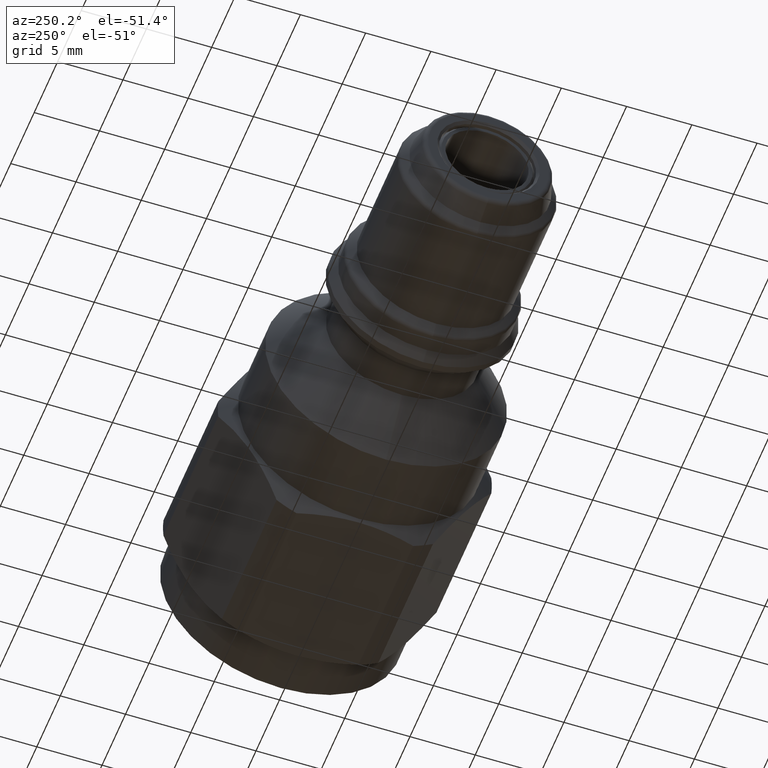
[diagram: clean part render]
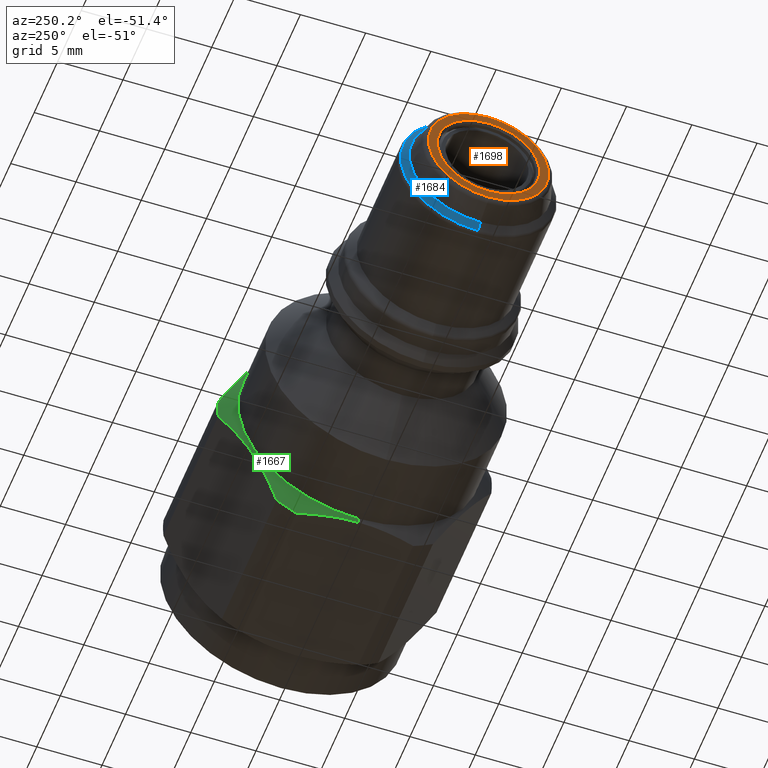
[diagram: same view with three faces highlighted in distinct colors, each labeled with its STEP entity id]
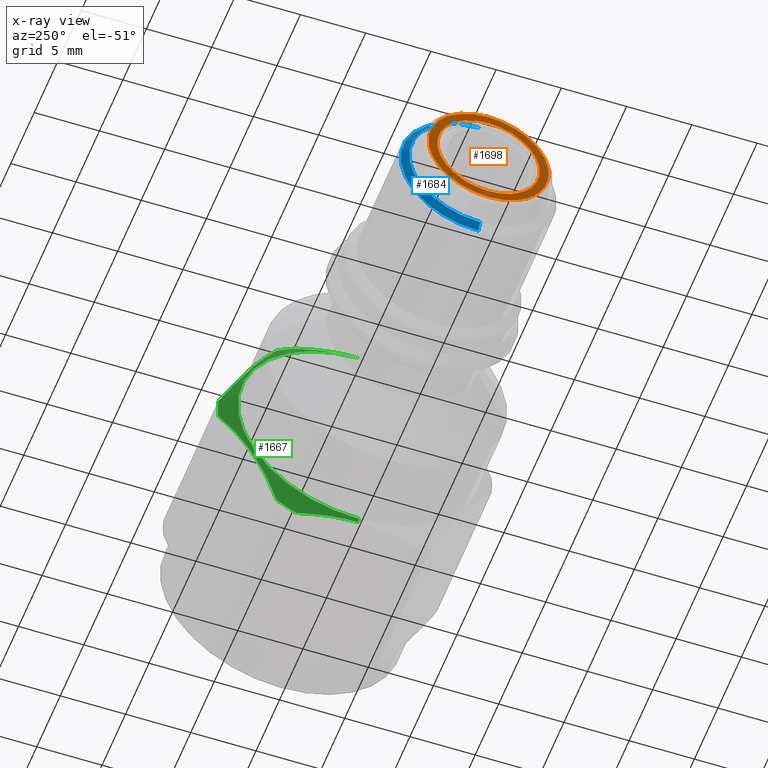
[diagram: x-ray of the same camera — body ghosted, the three highlighted faces saturated]
A machine part, auxiliary view with three faces highlighted in distinct colors.
The next image is the same camera in x-ray (body ghosted, the three faces saturated) — at least one of them is partly hidden behind the body in this view.
Their STEP definitions:

[orange] entity #1698 — the highlighted planar face has unit normal (1, 0, 0).
#46 = DIRECTION ( 'NONE',  ( 0.0000000000000000000, 0.0000000000000000000, -1.000000000000000000 ) ) ;
#73 = CARTESIAN_POINT ( 'NONE',  ( -44.50000000003974800, 0.0000000000000000000, 0.0000000000000000000 ) ) ;
#79 = DIRECTION ( 'NONE',  ( -1.000000000000000000, -0.0000000000000000000, -0.0000000000000000000 ) ) ;
#166 = AXIS2_PLACEMENT_3D ( 'NONE', #1866, #1863, #1864 ) ;
#184 = AXIS2_PLACEMENT_3D ( 'NONE', #570, #569, #566 ) ;
#223 = EDGE_CURVE ( 'NONE', #744, #662, #980, .T. ) ;
#277 = EDGE_CURVE ( 'NONE', #736, #692, #921, .T. ) ;
#302 = AXIS2_PLACEMENT_3D ( 'NONE', #1654, #1651, #1652 ) ;
#313 = EDGE_CURVE ( 'NONE', #662, #744, #882, .T. ) ;
#324 = EDGE_CURVE ( 'NONE', #692, #736, #872, .T. ) ;
#334 = AXIS2_PLACEMENT_3D ( 'NONE', #73, #79, #46 ) ;
#411 = CARTESIAN_POINT ( 'NONE',  ( -44.50000000003974800, 4.913235865358290200, 0.0000000000000000000 ) ) ;
#412 = PLANE ( 'NONE',  #638 ) ;
#414 = DIRECTION ( 'NONE',  ( 0.0000000000000000000, 0.0000000000000000000, -1.000000000000000000 ) ) ;
#415 = DIRECTION ( 'NONE',  ( 1.000000000000000000, 0.0000000000000000000, 0.0000000000000000000 ) ) ;
#566 = DIRECTION ( 'NONE',  ( 0.0000000000000000000, 0.0000000000000000000, -1.000000000000000000 ) ) ;
#569 = DIRECTION ( 'NONE',  ( -1.000000000000000000, -0.0000000000000000000, -0.0000000000000000000 ) ) ;
#570 = CARTESIAN_POINT ( 'NONE',  ( -44.50000000003974800, 0.0000000000000000000, 0.0000000000000000000 ) ) ;
#638 = AXIS2_PLACEMENT_3D ( 'NONE', #411, #415, #414 ) ;
#662 = VERTEX_POINT ( 'NONE', #1475 ) ;
#692 = VERTEX_POINT ( 'NONE', #1447 ) ;
#736 = VERTEX_POINT ( 'NONE', #1560 ) ;
#744 = VERTEX_POINT ( 'NONE', #1591 ) ;
#872 = CIRCLE ( 'NONE', #302, 3.925000000032099900 ) ;
#882 = CIRCLE ( 'NONE', #184, 4.617251435346900300 ) ;
#921 = CIRCLE ( 'NONE', #166, 3.925000000032099900 ) ;
#980 = CIRCLE ( 'NONE', #334, 4.617251435346900300 ) ;
#1058 = ORIENTED_EDGE ( 'NONE', *, *, #313, .T. ) ;
#1059 = ORIENTED_EDGE ( 'NONE', *, *, #223, .T. ) ;
#1060 = ORIENTED_EDGE ( 'NONE', *, *, #324, .F. ) ;
#1061 = ORIENTED_EDGE ( 'NONE', *, *, #277, .F. ) ;
#1294 = EDGE_LOOP ( 'NONE', ( #1060, #1061 ) ) ;
#1312 = EDGE_LOOP ( 'NONE', ( #1058, #1059 ) ) ;
#1447 = CARTESIAN_POINT ( 'NONE',  ( -44.50000000003974800, 0.0000000000000000000, 3.925000000032099900 ) ) ;
#1475 = CARTESIAN_POINT ( 'NONE',  ( -44.50000000003974800, 0.0000000000000000000, -4.617251435346900300 ) ) ;
#1560 = CARTESIAN_POINT ( 'NONE',  ( -44.50000000003974800, 4.806738686692672600E-016, -3.925000000032099900 ) ) ;
#1591 = CARTESIAN_POINT ( 'NONE',  ( -44.50000000003974800, 5.888729302836007300E-016, 4.617251435346900300 ) ) ;
#1651 = DIRECTION ( 'NONE',  ( -1.000000000000000000, 0.0000000000000000000, 0.0000000000000000000 ) ) ;
#1652 = DIRECTION ( 'NONE',  ( 0.0000000000000000000, 0.0000000000000000000, 1.000000000000000000 ) ) ;
#1654 = CARTESIAN_POINT ( 'NONE',  ( -44.50000000003974800, 0.0000000000000000000, 0.0000000000000000000 ) ) ;
#1698 = ADVANCED_FACE ( 'NONE', ( #1960, #1959 ), #412, .F. ) ;
#1863 = DIRECTION ( 'NONE',  ( -1.000000000000000000, 0.0000000000000000000, 0.0000000000000000000 ) ) ;
#1864 = DIRECTION ( 'NONE',  ( 0.0000000000000000000, 0.0000000000000000000, 1.000000000000000000 ) ) ;
#1866 = CARTESIAN_POINT ( 'NONE',  ( -44.50000000003974800, 0.0000000000000000000, 0.0000000000000000000 ) ) ;
#1959 = FACE_BOUND ( 'NONE', #1294, .T. ) ;
#1960 = FACE_OUTER_BOUND ( 'NONE', #1312, .T. ) ;

[blue] entity #1684 — the highlighted conical surface has half-angle 50 deg.
#87 = DIRECTION ( 'NONE',  ( -1.000000000000000000, 0.0000000000000000000, 0.0000000000000000000 ) ) ;
#129 = CARTESIAN_POINT ( 'NONE',  ( -42.31989471402535200, 0.0000000000000000000, 0.0000000000000000000 ) ) ;
#146 = DIRECTION ( 'NONE',  ( 0.0000000000000000000, 0.0000000000000000000, 1.000000000000000000 ) ) ;
#222 = EDGE_CURVE ( 'NONE', #669, #715, #982, .T. ) ;
#226 = EDGE_CURVE ( 'NONE', #716, #660, #977, .T. ) ;
#229 = EDGE_CURVE ( 'NONE', #716, #669, #976, .T. ) ;
#230 = EDGE_CURVE ( 'NONE', #660, #715, #973, .T. ) ;
#331 = AXIS2_PLACEMENT_3D ( 'NONE', #1773, #1774, #1779 ) ;
#335 = AXIS2_PLACEMENT_3D ( 'NONE', #129, #87, #146 ) ;
#473 = CARTESIAN_POINT ( 'NONE',  ( -42.20000000003975800, 0.0000000000000000000, 0.0000000000000000000 ) ) ;
#480 = DIRECTION ( 'NONE',  ( 1.000000000000000000, 0.0000000000000000000, 0.0000000000000000000 ) ) ;
#489 = DIRECTION ( 'NONE',  ( 0.0000000000000000000, 0.0000000000000000000, -1.000000000000000000 ) ) ;
#630 = AXIS2_PLACEMENT_3D ( 'NONE', #473, #480, #489 ) ;
#660 = VERTEX_POINT ( 'NONE', #1478 ) ;
#669 = VERTEX_POINT ( 'NONE', #1470 ) ;
#715 = VERTEX_POINT ( 'NONE', #1594 ) ;
#716 = VERTEX_POINT ( 'NONE', #1597 ) ;
#762 = CONICAL_SURFACE ( 'NONE', #630, 6.100000000000000500, 0.8726646259971512200 ) ;
#764 = FACE_OUTER_BOUND ( 'NONE', #1371, .T. ) ;
#972 = VECTOR ( 'NONE', #1722, 999.9999999999998900 ) ;
#973 = LINE ( 'NONE', #1720, #972 ) ;
#974 = VECTOR ( 'NONE', #1719, 999.9999999999998900 ) ;
#976 = LINE ( 'NONE', #1718, #974 ) ;
#977 = CIRCLE ( 'NONE', #331, 5.449551296709770100 ) ;
#982 = CIRCLE ( 'NONE', #335, 5.957115043874620300 ) ;
#1091 = ORIENTED_EDGE ( 'NONE', *, *, #230, .F. ) ;
#1109 = ORIENTED_EDGE ( 'NONE', *, *, #226, .F. ) ;
#1117 = ORIENTED_EDGE ( 'NONE', *, *, #229, .T. ) ;
#1118 = ORIENTED_EDGE ( 'NONE', *, *, #222, .T. ) ;
#1371 = EDGE_LOOP ( 'NONE', ( #1109, #1117, #1118, #1091 ) ) ;
#1470 = CARTESIAN_POINT ( 'NONE',  ( -42.31989471402535200, 7.295361870633592900E-016, 5.957115043874615900 ) ) ;
#1478 = CARTESIAN_POINT ( 'NONE',  ( -42.74579126707035200, 0.0000000000000000000, -5.449551296709770100 ) ) ;
#1594 = CARTESIAN_POINT ( 'NONE',  ( -42.31989471402535200, 0.0000000000000000000, -5.957115043874615900 ) ) ;
#1597 = CARTESIAN_POINT ( 'NONE',  ( -42.74579126707035200, 6.673775552304927900E-016, 5.449551296709770100 ) ) ;
#1684 = ADVANCED_FACE ( 'NONE', ( #764 ), #762, .T. ) ;
#1718 = CARTESIAN_POINT ( 'NONE',  ( -42.20000000003975800, 7.470345474798855300E-016, 6.100000000000000500 ) ) ;
#1719 = DIRECTION ( 'NONE',  ( 0.6427876096865495800, 9.381338752702627200E-017, 0.7660444431189693500 ) ) ;
#1720 = CARTESIAN_POINT ( 'NONE',  ( -42.20000000003975800, 0.0000000000000000000, -6.100000000000000500 ) ) ;
#1722 = DIRECTION ( 'NONE',  ( 0.6427876096865495800, 0.0000000000000000000, -0.7660444431189693500 ) ) ;
#1773 = CARTESIAN_POINT ( 'NONE',  ( -42.74579126707035200, 0.0000000000000000000, 0.0000000000000000000 ) ) ;
#1774 = DIRECTION ( 'NONE',  ( -1.000000000000000000, 0.0000000000000000000, 0.0000000000000000000 ) ) ;
#1779 = DIRECTION ( 'NONE',  ( 0.0000000000000000000, 0.0000000000000000000, 1.000000000000000000 ) ) ;

[green] entity #1667 — the highlighted conical surface has half-angle 54.741 deg.
#40 = CARTESIAN_POINT ( 'NONE',  ( -16.03397459621544700, 4.472135954999624900, 9.500000000000000000 ) ) ;
#41 = CARTESIAN_POINT ( 'NONE',  ( -16.25118935113408700, 3.750747677462578100, 9.500000000000000000 ) ) ;
#42 = CARTESIAN_POINT ( 'NONE',  ( -16.42890816646953300, 3.018253001808532100, 9.500000000000000000 ) ) ;
#43 = CARTESIAN_POINT ( 'NONE',  ( -16.61325780061456600, 1.896388017862768800, 9.499999999999996400 ) ) ;
#44 = CARTESIAN_POINT ( 'NONE',  ( -16.66106813924827200, 1.517207906920678300, 9.500000000000000000 ) ) ;
#45 = CARTESIAN_POINT ( 'NONE',  ( -16.72498090488483400, 0.7562864214277523800, 9.500000000000000000 ) ) ;
#47 = CARTESIAN_POINT ( 'NONE',  ( -16.74093410953185000, 0.3773723099377014300, 9.499999999999996400 ) ) ;
#49 = CARTESIAN_POINT ( 'NONE',  ( -16.74093410953185300, 1.163414453303989800E-015, 9.499999999999998200 ) ) ;
#51 = CARTESIAN_POINT ( 'NONE',  ( -16.03397459621544700, 1.285879139104720800E-015, 10.50000000000000000 ) ) ;
#53 = DIRECTION ( 'NONE',  ( 0.5772700983666239100, 9.999893415279094100E-017, 0.8165532643568259600 ) ) ;
#151 = EDGE_CURVE ( 'NONE', #679, #689, #1051, .T. ) ;
#204 = EDGE_CURVE ( 'NONE', #723, #683, #1916, .T. ) ;
#205 = EDGE_CURVE ( 'NONE', #708, #683, #1008, .T. ) ;
#232 = EDGE_CURVE ( 'NONE', #689, #670, #1927, .T. ) ;
#242 = EDGE_CURVE ( 'NONE', #723, #666, #956, .T. ) ;
#243 = EDGE_CURVE ( 'NONE', #730, #666, #1934, .T. ) ;
#245 = EDGE_CURVE ( 'NONE', #730, #649, #953, .T. ) ;
#246 = EDGE_CURVE ( 'NONE', #675, #649, #1933, .T. ) ;
#258 = EDGE_CURVE ( 'NONE', #675, #670, #944, .T. ) ;
#259 = EDGE_CURVE ( 'NONE', #708, #679, #943, .T. ) ;
#342 = AXIS2_PLACEMENT_3D ( 'NONE', #1905, #1904, #1903 ) ;
#343 = AXIS2_PLACEMENT_3D ( 'NONE', #1902, #1901, #1900 ) ;
#364 = AXIS2_PLACEMENT_3D ( 'NONE', #1803, #1801, #1804 ) ;
#366 = AXIS2_PLACEMENT_3D ( 'NONE', #1781, #1783, #1782 ) ;
#649 = VERTEX_POINT ( 'NONE', #1482 ) ;
#651 = DIRECTION ( 'NONE',  ( 0.5772700983666239100, 0.0000000000000000000, -0.8165532643568259600 ) ) ;
#654 = CARTESIAN_POINT ( 'NONE',  ( -16.03397459621544700, 0.0000000000000000000, -10.50000000000000000 ) ) ;
#666 = VERTEX_POINT ( 'NONE', #1471 ) ;
#670 = VERTEX_POINT ( 'NONE', #1467 ) ;
#675 = VERTEX_POINT ( 'NONE', #1463 ) ;
#679 = VERTEX_POINT ( 'NONE', #1460 ) ;
#683 = VERTEX_POINT ( 'NONE', #1456 ) ;
#689 = VERTEX_POINT ( 'NONE', #1450 ) ;
#708 = VERTEX_POINT ( 'NONE', #1543 ) ;
#723 = VERTEX_POINT ( 'NONE', #1539 ) ;
#730 = VERTEX_POINT ( 'NONE', #1564 ) ;
#809 = CONICAL_SURFACE ( 'NONE', #1415, 10.50000000000000000, 0.9554148035205876100 ) ;
#810 = FACE_OUTER_BOUND ( 'NONE', #1373, .T. ) ;
#943 = CIRCLE ( 'NONE', #343, 9.275000000039829800 ) ;
#944 = CIRCLE ( 'NONE', #342, 10.50000000000000000 ) ;
#953 = CIRCLE ( 'NONE', #364, 10.50000000000000000 ) ;
#956 = CIRCLE ( 'NONE', #366, 10.50000000000000000 ) ;
#1007 = VECTOR ( 'NONE', #53, 1000.000000000000000 ) ;
#1008 = LINE ( 'NONE', #51, #1007 ) ;
#1049 = VECTOR ( 'NONE', #651, 1000.000000000000000 ) ;
#1051 = LINE ( 'NONE', #654, #1049 ) ;
#1188 = ORIENTED_EDGE ( 'NONE', *, *, #259, .F. ) ;
#1189 = ORIENTED_EDGE ( 'NONE', *, *, #205, .T. ) ;
#1190 = ORIENTED_EDGE ( 'NONE', *, *, #204, .F. ) ;
#1191 = ORIENTED_EDGE ( 'NONE', *, *, #242, .T. ) ;
#1192 = ORIENTED_EDGE ( 'NONE', *, *, #243, .F. ) ;
#1193 = ORIENTED_EDGE ( 'NONE', *, *, #245, .T. ) ;
#1194 = ORIENTED_EDGE ( 'NONE', *, *, #246, .F. ) ;
#1195 = ORIENTED_EDGE ( 'NONE', *, *, #258, .T. ) ;
#1196 = ORIENTED_EDGE ( 'NONE', *, *, #232, .F. ) ;
#1197 = ORIENTED_EDGE ( 'NONE', *, *, #151, .F. ) ;
#1373 = EDGE_LOOP ( 'NONE', ( #1188, #1189, #1190, #1191, #1192, #1193, #1194, #1195, #1196, #1197 ) ) ;
#1415 = AXIS2_PLACEMENT_3D ( 'NONE', #1604, #1603, #1605 ) ;
#1450 = CARTESIAN_POINT ( 'NONE',  ( -16.74093410953185300, -5.884902352948748100E-024, -9.499999999999998200 ) ) ;
#1456 = CARTESIAN_POINT ( 'NONE',  ( -16.74093410953185300, 1.163414453303989800E-015, 9.499999999999998200 ) ) ;
#1460 = CARTESIAN_POINT ( 'NONE',  ( -16.89999999999999900, 0.0000000000000000000, -9.275000000039829800 ) ) ;
#1463 = CARTESIAN_POINT ( 'NONE',  ( -16.03397459621544700, 5.991173358452360100, -8.622983346207441000 ) ) ;
#1467 = CARTESIAN_POINT ( 'NONE',  ( -16.03397459621544700, 4.472135954999619600, -9.500000000000000000 ) ) ;
#1471 = CARTESIAN_POINT ( 'NONE',  ( -16.03397459621544700, 5.991173358452360100, 8.622983346207441000 ) ) ;
#1482 = CARTESIAN_POINT ( 'NONE',  ( -16.03397459621544700, 10.46330931345196000, -0.8770166537925550000 ) ) ;
#1539 = CARTESIAN_POINT ( 'NONE',  ( -16.03397459621544700, 4.472135954999624900, 9.500000000000000000 ) ) ;
#1543 = CARTESIAN_POINT ( 'NONE',  ( -16.89999999999999900, 1.210869522659385600E-015, 9.275000000039829800 ) ) ;
#1564 = CARTESIAN_POINT ( 'NONE',  ( -16.03397459621544700, 10.46330931345196000, 0.8770166537925580000 ) ) ;
#1603 = DIRECTION ( 'NONE',  ( 1.000000000000000000, 0.0000000000000000000, 0.0000000000000000000 ) ) ;
#1604 = CARTESIAN_POINT ( 'NONE',  ( -16.03397459621544700, 0.0000000000000000000, 0.0000000000000000000 ) ) ;
#1605 = DIRECTION ( 'NONE',  ( 0.0000000000000000000, 0.0000000000000000000, -1.000000000000000000 ) ) ;
#1667 = ADVANCED_FACE ( 'NONE', ( #810 ), #809, .T. ) ;
#1729 = CARTESIAN_POINT ( 'NONE',  ( -16.74093410953185300, 0.3773723099377005500, -9.499999999999998200 ) ) ;
#1730 = CARTESIAN_POINT ( 'NONE',  ( -16.74093410953185300, -5.884902352948748100E-024, -9.499999999999998200 ) ) ;
#1731 = CARTESIAN_POINT ( 'NONE',  ( -16.66106813924826500, 1.517207906920675900, -9.499999999999994700 ) ) ;
#1732 = CARTESIAN_POINT ( 'NONE',  ( -16.72498090488483800, 0.7562864214277514900, -9.499999999999998200 ) ) ;
#1734 = CARTESIAN_POINT ( 'NONE',  ( -16.42890816646953300, 3.018253001808528500, -9.499999999999998200 ) ) ;
#1735 = CARTESIAN_POINT ( 'NONE',  ( -16.61325780061456200, 1.896388017862767900, -9.499999999999998200 ) ) ;
#1736 = CARTESIAN_POINT ( 'NONE',  ( -16.25118935113409400, 3.750747677462572800, -9.500000000000000000 ) ) ;
#1737 = CARTESIAN_POINT ( 'NONE',  ( -16.03397459621544700, 4.472135954999619600, -9.500000000000000000 ) ) ;
#1781 = CARTESIAN_POINT ( 'NONE',  ( -16.03397459621544700, 0.0000000000000000000, 0.0000000000000000000 ) ) ;
#1782 = DIRECTION ( 'NONE',  ( 0.0000000000000000000, 0.0000000000000000000, 1.000000000000000000 ) ) ;
#1783 = DIRECTION ( 'NONE',  ( -1.000000000000000000, 0.0000000000000000000, 0.0000000000000000000 ) ) ;
#1784 = CARTESIAN_POINT ( 'NONE',  ( -16.03397459621544700, 10.46330931345196000, 0.8770166537925580000 ) ) ;
#1785 = CARTESIAN_POINT ( 'NONE',  ( -16.25358067413441900, 10.09864428333932200, 1.508635013691319100 ) ) ;
#1787 = CARTESIAN_POINT ( 'NONE',  ( -16.67385940365241800, 8.990616441723714700, 3.427795531570430500 ) ) ;
#1788 = CARTESIAN_POINT ( 'NONE',  ( -16.43065383329000200, 9.731477135717776500, 2.144587168241979500 ) ) ;
#1789 = CARTESIAN_POINT ( 'NONE',  ( -16.74227762285997300, 7.861889424760335000, 5.382808072826669800 ) ) ;
#1791 = CARTESIAN_POINT ( 'NONE',  ( -16.73954664139159100, 8.616896706781023600, 4.075097100282347300 ) ) ;
#1792 = CARTESIAN_POINT ( 'NONE',  ( -16.43292396391933600, 6.727071025310604700, 7.348371198037595400 ) ) ;
#1793 = CARTESIAN_POINT ( 'NONE',  ( -16.67760660505042500, 7.478201597625199400, 6.047374883670426200 ) ) ;
#1794 = CARTESIAN_POINT ( 'NONE',  ( -16.03397459621544700, 5.991173358452360100, 8.622983346207441000 ) ) ;
#1795 = CARTESIAN_POINT ( 'NONE',  ( -16.25431730839198600, 6.357061600400801800, 7.989246321260714500 ) ) ;
#1801 = DIRECTION ( 'NONE',  ( -1.000000000000000000, 0.0000000000000000000, 0.0000000000000000000 ) ) ;
#1803 = CARTESIAN_POINT ( 'NONE',  ( -16.03397459621544700, 0.0000000000000000000, 0.0000000000000000000 ) ) ;
#1804 = DIRECTION ( 'NONE',  ( 0.0000000000000000000, 0.0000000000000000000, 1.000000000000000000 ) ) ;
#1805 = CARTESIAN_POINT ( 'NONE',  ( -16.03397459621544700, 5.991173358452360100, -8.622983346207441000 ) ) ;
#1806 = CARTESIAN_POINT ( 'NONE',  ( -16.43065383329000500, 6.723005536186567700, -7.355412831758031600 ) ) ;
#1808 = CARTESIAN_POINT ( 'NONE',  ( -16.25358067413441500, 6.355838388565019600, -7.991364986308695100 ) ) ;
#1812 = CARTESIAN_POINT ( 'NONE',  ( -16.73954664139159100, 7.837585965123320600, -5.424902899717661600 ) ) ;
#1813 = CARTESIAN_POINT ( 'NONE',  ( -16.67385940365241800, 7.463866230180628700, -6.072204468429578800 ) ) ;
#1814 = CARTESIAN_POINT ( 'NONE',  ( -16.67760660505042800, 8.976281074279144800, -3.452625116329581800 ) ) ;
#1815 = CARTESIAN_POINT ( 'NONE',  ( -16.74227762285997300, 8.592593247144011000, -4.117191927173339900 ) ) ;
#1816 = CARTESIAN_POINT ( 'NONE',  ( -16.25431730839199300, 10.09742107150354700, -1.510753678739293900 ) ) ;
#1818 = CARTESIAN_POINT ( 'NONE',  ( -16.43292396391934000, 9.727411646593743900, -2.151628801962412100 ) ) ;
#1819 = CARTESIAN_POINT ( 'NONE',  ( -16.03397459621544700, 10.46330931345196000, -0.8770166537925550000 ) ) ;
#1900 = DIRECTION ( 'NONE',  ( 0.0000000000000000000, 0.0000000000000000000, 1.000000000000000000 ) ) ;
#1901 = DIRECTION ( 'NONE',  ( -1.000000000000000000, 0.0000000000000000000, 0.0000000000000000000 ) ) ;
#1902 = CARTESIAN_POINT ( 'NONE',  ( -16.89999999999999900, 0.0000000000000000000, 0.0000000000000000000 ) ) ;
#1903 = DIRECTION ( 'NONE',  ( 0.0000000000000000000, 0.0000000000000000000, 1.000000000000000000 ) ) ;
#1904 = DIRECTION ( 'NONE',  ( -1.000000000000000000, 0.0000000000000000000, 0.0000000000000000000 ) ) ;
#1905 = CARTESIAN_POINT ( 'NONE',  ( -16.03397459621544700, 0.0000000000000000000, 0.0000000000000000000 ) ) ;
#1916 = B_SPLINE_CURVE_WITH_KNOTS ( 'NONE', 3,
 ( #40, #41, #42, #43, #44, #45, #47, #49 ),
 .UNSPECIFIED., .F., .F.,
 ( 4, 2, 2, 4 ),
 ( 0.002967842708423500000, 0.005227606038495771800, 0.006357487703531906600, 0.007487369368568041300 ),
 .UNSPECIFIED. ) ;
#1927 = B_SPLINE_CURVE_WITH_KNOTS ( 'NONE', 3,
 ( #1730, #1729, #1732, #1731, #1735, #1734, #1736, #1737 ),
 .UNSPECIFIED., .F., .F.,
 ( 4, 2, 2, 4 ),
 ( 0.01411763825143256900, 0.01524695996062904400, 0.01637628166982552100, 0.01863492508821847100 ),
 .UNSPECIFIED. ) ;
#1933 = B_SPLINE_CURVE_WITH_KNOTS ( 'NONE', 3,
 ( #1805, #1808, #1806, #1813, #1812, #1815, #1814, #1818, #1816, #1819 ),
 .UNSPECIFIED., .F., .F.,
 ( 4, 2, 2, 2, 4 ),
 ( 6.829963319864143300E-007, 0.002250667259526802900, 0.004500651522721619900, 0.006750635785916436600, 0.009000620049111252400 ),
 .UNSPECIFIED. ) ;
#1934 = B_SPLINE_CURVE_WITH_KNOTS ( 'NONE', 3,
 ( #1784, #1785, #1788, #1787, #1791, #1789, #1793, #1792, #1795, #1794 ),
 .UNSPECIFIED., .F., .F.,
 ( 4, 2, 2, 2, 4 ),
 ( 6.829963319866007800E-007, 0.002250667259526802000, 0.004500651522721617300, 0.006750635785916433100, 0.009000620049111247200 ),
 .UNSPECIFIED. ) ;